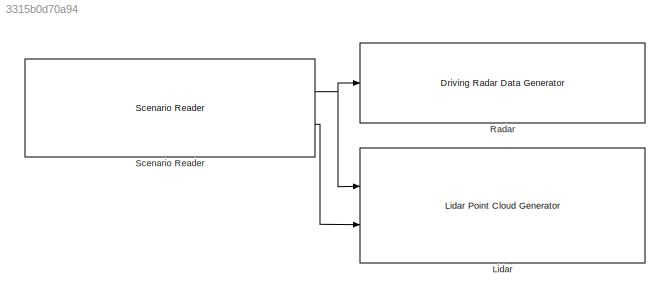
MODEL slx_3315b0d70a94
KIND model
CONFIG AbsTol = auto
CONFIG EnableMultiTasking = off
CONFIG FixedStep = auto
CONFIG MaxStep = auto
CONFIG MinStep = auto
CONFIG RelTol = 1e-3
CONFIG SampleTimeConstraint = Unconstrained
CONFIG SolverName = FixedStepDiscrete
CONFIG StartTime = 0.0
CONFIG StopTime = 10.0
WORKSPACE source: mxarray member
WORKSPACE firstWarning = 1
WORKSPACE originalScenarioChecksum = 'EF1A17B344F2D1ADC9DC90725982CA5F'
BLOCK [Reference] Lidar  REF=drivingscenarioandsensors/Lidar Point Cloud Generator
  Ports = [2, 1]
  SourceBlock = drivingscenarioandsensors/Lidar Point Cloud Generator
  SourceProductBaseCode = DR
  SourceType = lidarPointCloudGenerator
BLOCK [Reference] Radar  REF=drivingscenarioandsensors/Driving Radar Data Generator
  Ports = [1, 1]
  SourceBlock = drivingscenarioandsensors/Driving Radar Data Generator
  SourceProductBaseCode = DR
  SourceType = drivingRadarDataGenerator
BLOCK [Reference] Scenario Reader  REF=drivingscenarioandsensors/Scenario Reader
  Ports = [0, 2]
  SourceBlock = drivingscenarioandsensors/Scenario Reader
  SourceProductBaseCode = DR
  SourceType = driving.scenario.internal.ScenarioReader
NET Scenario Reader:1 -> Lidar:1, Radar:1
LINE Scenario Reader:2 -> Lidar:2
note: NET lines group one-source signal fan-out (src -> all destinations, sorted); 1:1 wires keep LINE
